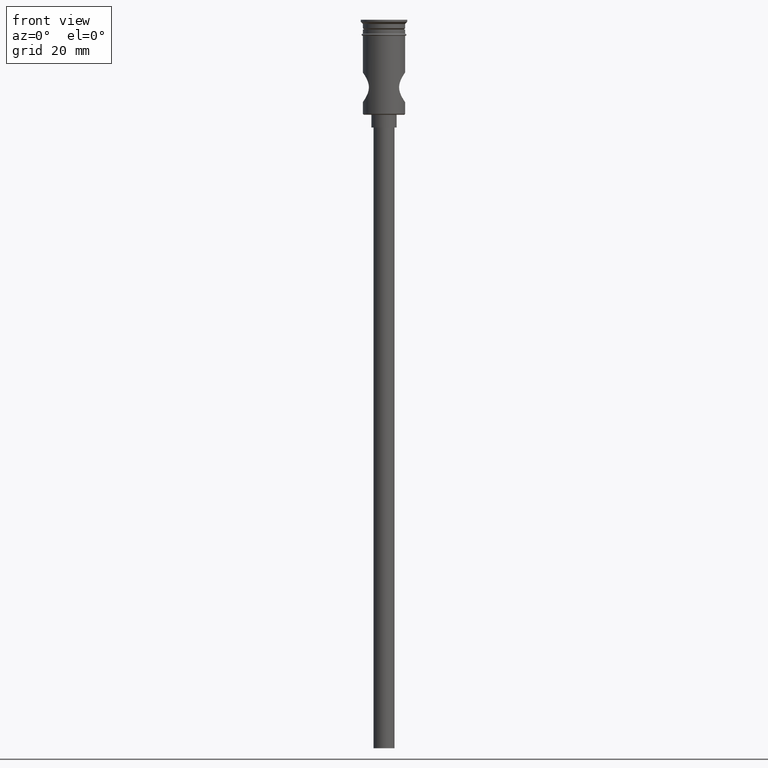
[diagram: clean part render]
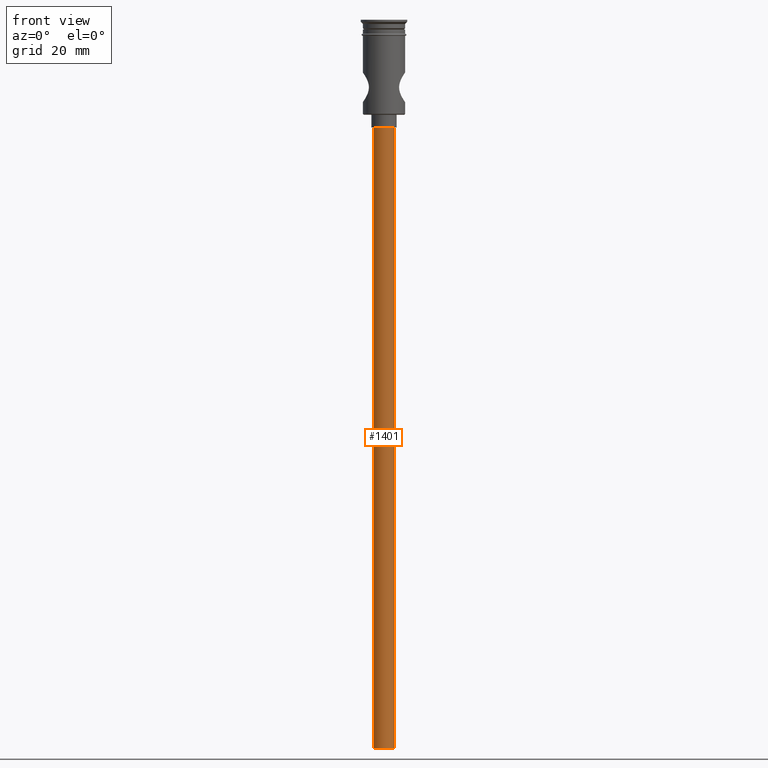
[diagram: same view with one face highlighted and labeled with its STEP entity id]
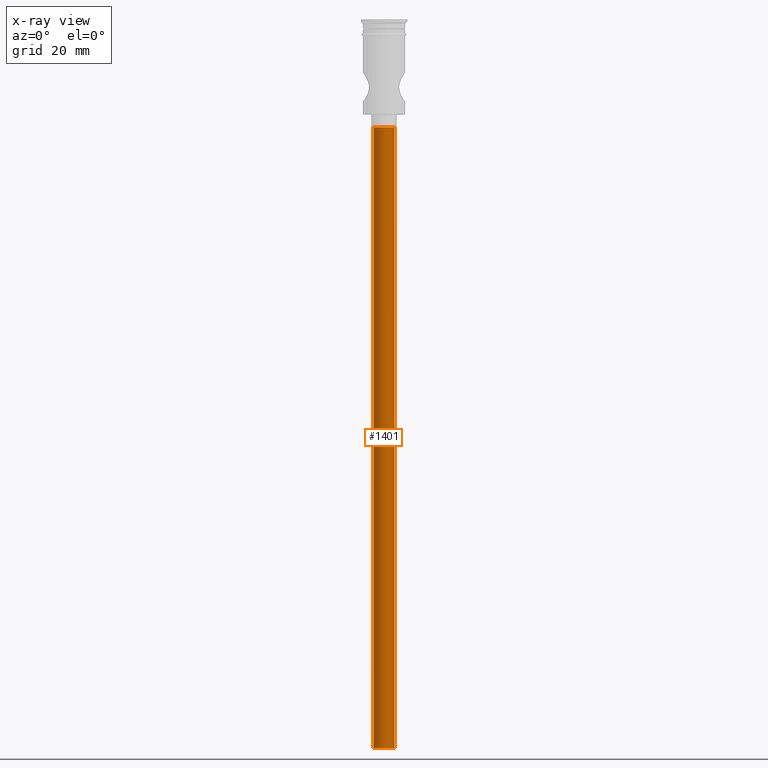
[diagram: x-ray of the same camera — body ghosted, the highlighted face saturated]
A machine part, front view. The second image highlights one B-rep face of the part: STEP entity #1401.
The next image is the same camera in x-ray: the body ghosted, the highlighted face saturated — about 0% of this face is hidden behind the body in this view.
In plain terms, the highlighted cylindrical surface (edge-blend (fillet) strip) has radius 2.5 mm, axis along (-0, -0, 1).
Its self-contained STEP definition (entity closure, byte-faithful):
#14 = CIRCLE ( 'NONE', #102, 2.500000000000000000 ) ;
#19 = EDGE_CURVE ( 'NONE', #536, #1424, #501, .T. ) ;
#29 = DIRECTION ( 'NONE',  ( -1.000000000000000000, 0.000000000000000000, 0.000000000000000000 ) ) ;
#83 = DIRECTION ( 'NONE',  ( -0.000000000000000000, -0.000000000000000000, 1.000000000000000000 ) ) ;
#89 = CARTESIAN_POINT ( 'NONE',  ( 2.500000000000000000, 0.000000000000000000, -25.50000000000000000 ) ) ;
#95 = EDGE_CURVE ( 'NONE', #1424, #1454, #534, .T. ) ;
#102 = AXIS2_PLACEMENT_3D ( 'NONE', #547, #205, #220 ) ;
#109 = VERTEX_POINT ( 'NONE', #89 ) ;
#181 = DIRECTION ( 'NONE',  ( -0.000000000000000000, -0.000000000000000000, 1.000000000000000000 ) ) ;
#186 = CYLINDRICAL_SURFACE ( 'NONE', #1391, 2.500000000000000000 ) ;
#195 = ORIENTED_EDGE ( 'NONE', *, *, #1308, .T. ) ;
#205 = DIRECTION ( 'NONE',  ( 0.000000000000000000, 0.000000000000000000, -1.000000000000000000 ) ) ;
#220 = DIRECTION ( 'NONE',  ( -1.000000000000000000, 0.000000000000000000, 0.000000000000000000 ) ) ;
#273 = ORIENTED_EDGE ( 'NONE', *, *, #95, .F. ) ;
#400 = VECTOR ( 'NONE', #706, 1000.000000000000000 ) ;
#401 = EDGE_CURVE ( 'NONE', #536, #109, #1163, .T. ) ;
#484 = CARTESIAN_POINT ( 'NONE',  ( -2.500000000000000000, 3.061616997868383141E-16, -25.50000000000000000 ) ) ;
#501 = CIRCLE ( 'NONE', #1117, 2.500000000000000000 ) ;
#534 = LINE ( 'NONE', #569, #1309 ) ;
#536 = VERTEX_POINT ( 'NONE', #1416 ) ;
#547 = CARTESIAN_POINT ( 'NONE',  ( 0.000000000000000000, 0.000000000000000000, -25.50000000000000000 ) ) ;
#569 = CARTESIAN_POINT ( 'NONE',  ( -2.500000000000000000, 3.061616997868383141E-16, -172.5000000000000000 ) ) ;
#610 = CARTESIAN_POINT ( 'NONE',  ( 0.000000000000000000, 0.000000000000000000, -172.5000000000000000 ) ) ;
#706 = DIRECTION ( 'NONE',  ( -0.000000000000000000, -0.000000000000000000, 1.000000000000000000 ) ) ;
#727 = FACE_OUTER_BOUND ( 'NONE', #1303, .T. ) ;
#728 = ORIENTED_EDGE ( 'NONE', *, *, #401, .T. ) ;
#741 = DIRECTION ( 'NONE',  ( 1.000000000000000000, 0.000000000000000000, 0.000000000000000000 ) ) ;
#927 = ORIENTED_EDGE ( 'NONE', *, *, #19, .F. ) ;
#1036 = CARTESIAN_POINT ( 'NONE',  ( 2.500000000000000000, 0.000000000000000000, -172.5000000000000000 ) ) ;
#1117 = AXIS2_PLACEMENT_3D ( 'NONE', #1263, #1173, #29 ) ;
#1163 = LINE ( 'NONE', #1036, #400 ) ;
#1173 = DIRECTION ( 'NONE',  ( 0.000000000000000000, 0.000000000000000000, -1.000000000000000000 ) ) ;
#1263 = CARTESIAN_POINT ( 'NONE',  ( 0.000000000000000000, 0.000000000000000000, -172.5000000000000000 ) ) ;
#1280 = CARTESIAN_POINT ( 'NONE',  ( -2.500000000000000000, 3.061616997868383141E-16, -172.5000000000000000 ) ) ;
#1303 = EDGE_LOOP ( 'NONE', ( #273, #927, #728, #195 ) ) ;
#1308 = EDGE_CURVE ( 'NONE', #109, #1454, #14, .T. ) ;
#1309 = VECTOR ( 'NONE', #83, 1000.000000000000000 ) ;
#1391 = AXIS2_PLACEMENT_3D ( 'NONE', #610, #181, #741 ) ;
#1401 = ADVANCED_FACE ( 'NONE', ( #727 ), #186, .T. ) ;
#1416 = CARTESIAN_POINT ( 'NONE',  ( 2.500000000000000000, 0.000000000000000000, -172.5000000000000000 ) ) ;
#1424 = VERTEX_POINT ( 'NONE', #1280 ) ;
#1454 = VERTEX_POINT ( 'NONE', #484 ) ;